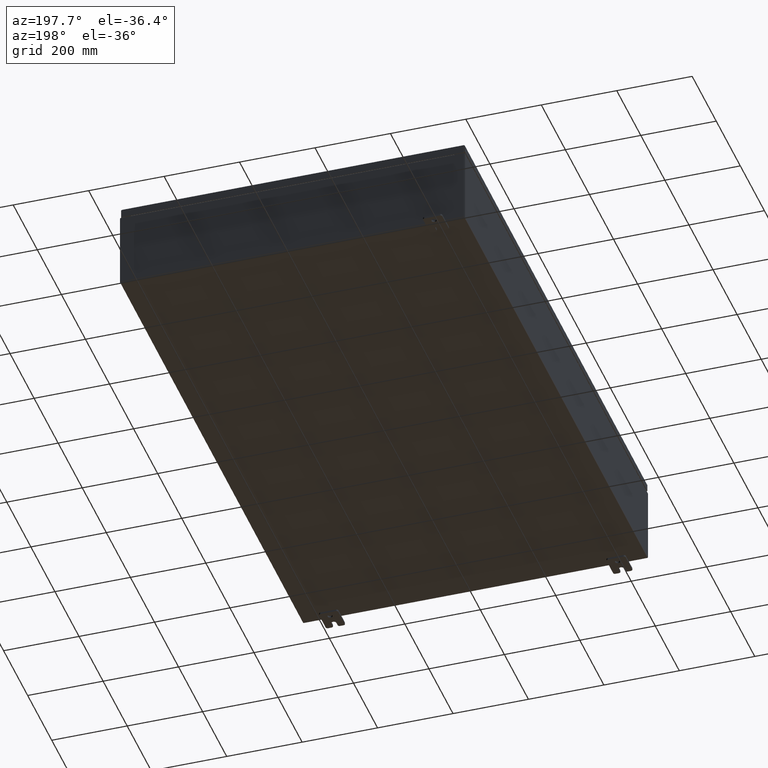
[diagram: clean part render]
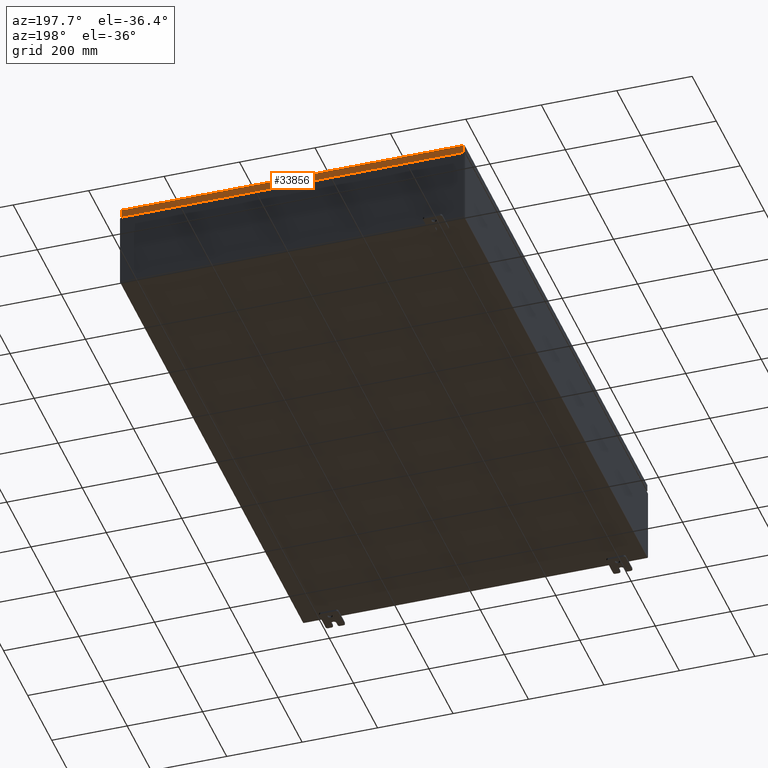
[diagram: same view with one face highlighted and labeled with its STEP entity id]
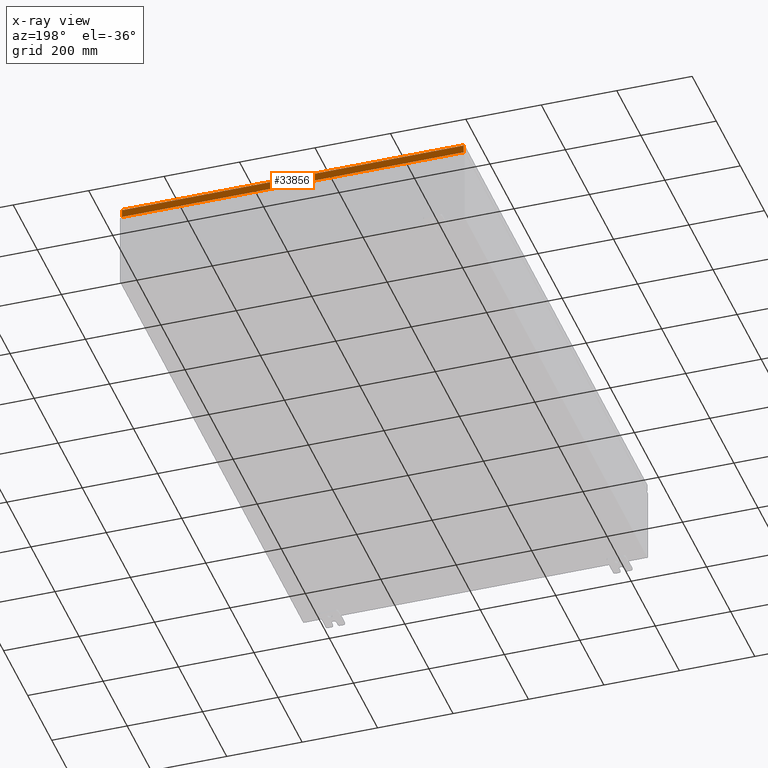
[diagram: x-ray of the same camera — body ghosted, the highlighted face saturated]
A machine part, auxiliary view. The second image highlights one B-rep face of the part: STEP entity #33856.
The next image is the same camera in x-ray: the body ghosted, the highlighted face saturated — about 0% of this face is hidden behind the body in this view.
In plain terms, the highlighted planar face has unit normal (0, -1, -0).
Its self-contained STEP definition (entity closure, byte-faithful):
#3105 = LINE ( 'NONE', #33800, #42392 ) ;
#3459 = VERTEX_POINT ( 'NONE', #10409 ) ;
#4759 = VERTEX_POINT ( 'NONE', #43904 ) ;
#5786 = CARTESIAN_POINT ( 'NONE',  ( -1.847420896432932100E-029, 29.93750000000000700, 1.518894566415475700E-013 ) ) ;
#5886 = EDGE_CURVE ( 'NONE', #4759, #34054, #66955, .T. ) ;
#6669 = VECTOR ( 'NONE', #54157, 39.37007874015748100 ) ;
#7144 = AXIS2_PLACEMENT_3D ( 'NONE', #5786, #11121, #48505 ) ;
#9721 = EDGE_CURVE ( 'NONE', #3459, #35899, #3105, .T. ) ;
#9894 = ORIENTED_EDGE ( 'NONE', *, *, #5886, .T. ) ;
#10409 = CARTESIAN_POINT ( 'NONE',  ( -17.84865786437626800, 29.93750000000000700, -0.08769999999999550400 ) ) ;
#11121 = DIRECTION ( 'NONE',  ( 6.170925750089124300E-031, -1.000000000000000000, -5.064839849203706200E-015 ) ) ;
#12048 = EDGE_LOOP ( 'NONE', ( #17449, #9894, #21966, #55728 ) ) ;
#17449 = ORIENTED_EDGE ( 'NONE', *, *, #34936, .F. ) ;
#18113 = DIRECTION ( 'NONE',  ( -0.0000000000000000000, 5.064839849203706200E-015, -1.000000000000000000 ) ) ;
#21966 = ORIENTED_EDGE ( 'NONE', *, *, #59747, .F. ) ;
#22115 = CARTESIAN_POINT ( 'NONE',  ( -17.93749999999999600, 29.93750000000001100, -0.9377000000000042000 ) ) ;
#31060 = VECTOR ( 'NONE', #37873, 39.37007874015748100 ) ;
#32766 = LINE ( 'NONE', #59141, #31060 ) ;
#33800 = CARTESIAN_POINT ( 'NONE',  ( -17.84865786437626400, 29.93750000000000700, -0.07469999999999962800 ) ) ;
#33856 = ADVANCED_FACE ( 'NONE', ( #62963 ), #37787, .F. ) ;
#34054 = VERTEX_POINT ( 'NONE', #55544 ) ;
#34936 = EDGE_CURVE ( 'NONE', #4759, #3459, #32766, .T. ) ;
#35899 = VERTEX_POINT ( 'NONE', #56721 ) ;
#37787 = PLANE ( 'NONE',  #7144 ) ;
#37873 = DIRECTION ( 'NONE',  ( -1.000000000000000000, -6.170925750089125200E-031, -3.189293793798670500E-045 ) ) ;
#42392 = VECTOR ( 'NONE', #18113, 39.37007874015748100 ) ;
#43904 = CARTESIAN_POINT ( 'NONE',  ( 17.84865786437626800, 29.93750000000000700, -0.08769999999999550400 ) ) ;
#48505 = DIRECTION ( 'NONE',  ( 0.0000000000000000000, 5.064839849203706200E-015, -1.000000000000000000 ) ) ;
#52700 = VECTOR ( 'NONE', #52993, 39.37007874015748100 ) ;
#52993 = DIRECTION ( 'NONE',  ( 0.0000000000000000000, 5.064839849203706200E-015, -1.000000000000000000 ) ) ;
#54157 = DIRECTION ( 'NONE',  ( 1.000000000000000000, 1.751623080406021300E-046, 1.218385167906012900E-016 ) ) ;
#55544 = CARTESIAN_POINT ( 'NONE',  ( 17.84865786437626800, 29.93750000000001100, -0.9376999999999997600 ) ) ;
#55728 = ORIENTED_EDGE ( 'NONE', *, *, #9721, .F. ) ;
#56721 = CARTESIAN_POINT ( 'NONE',  ( -17.84865786437626400, 29.93750000000001100, -0.9377000000000042000 ) ) ;
#59141 = CARTESIAN_POINT ( 'NONE',  ( -17.93749999999999600, 29.93750000000000700, -0.08769999999999550400 ) ) ;
#59747 = EDGE_CURVE ( 'NONE', #35899, #34054, #65225, .T. ) ;
#62963 = FACE_OUTER_BOUND ( 'NONE', #12048, .T. ) ;
#63527 = CARTESIAN_POINT ( 'NONE',  ( 17.84865786437626800, 29.93750000000000700, 1.518894566415475700E-013 ) ) ;
#65225 = LINE ( 'NONE', #22115, #6669 ) ;
#66955 = LINE ( 'NONE', #63527, #52700 ) ;